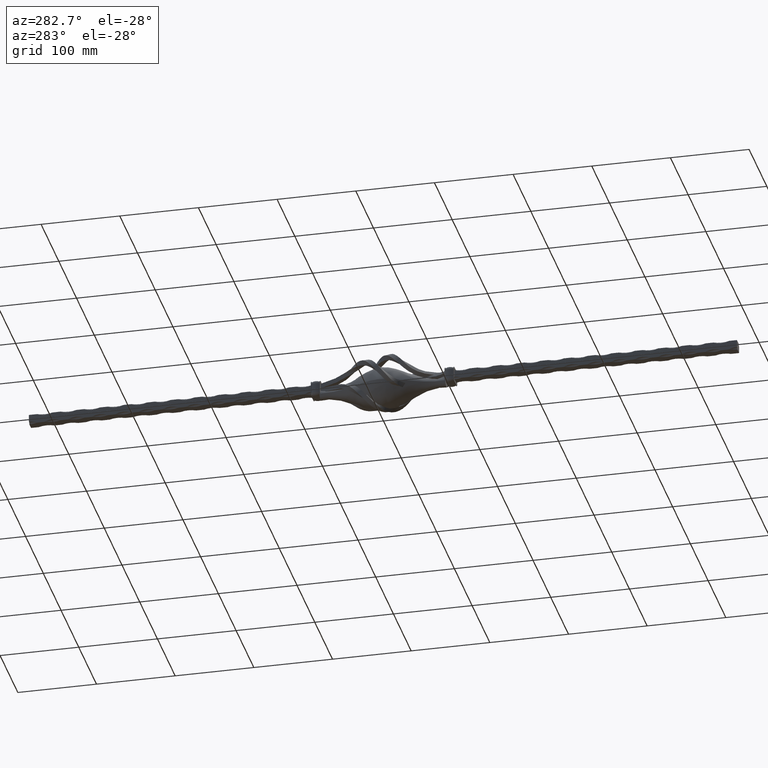
[diagram: clean part render]
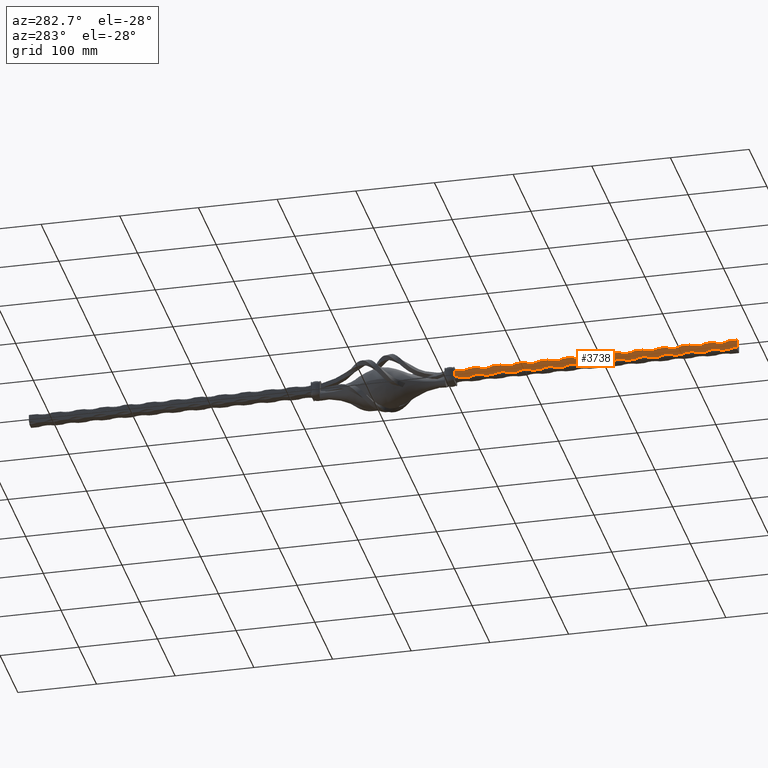
[diagram: same view with one face highlighted and labeled with its STEP entity id]
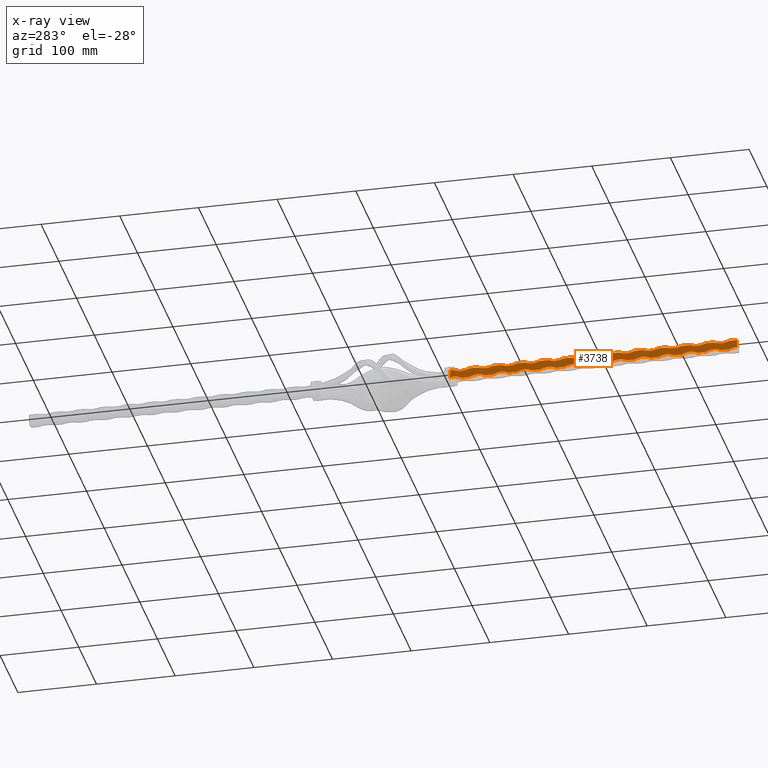
[diagram: x-ray of the same camera — body ghosted, the highlighted face saturated]
A machine part, auxiliary view. The second image highlights one B-rep face of the part: STEP entity #3738.
The next image is the same camera in x-ray: the body ghosted, the highlighted face saturated — about 0% of this face is hidden behind the body in this view.
In plain terms, the highlighted planar face has unit normal (1, 0, 0).
Its self-contained STEP definition (entity closure, byte-faithful):
#52 = DIRECTION ( 'NONE',  ( -1.000000000000000000, -0.000000000000000000, -0.000000000000000000 ) ) ;
#53 = DIRECTION ( 'NONE',  ( -0.000000000000000000, 1.000000000000000000, -0.000000000000000000 ) ) ;
#64 = LINE ( 'NONE', #15709, #23867 ) ;
#79 = EDGE_CURVE ( 'NONE', #5100, #22572, #15003, .T. ) ;
#131 = EDGE_CURVE ( 'NONE', #20643, #11840, #64, .T. ) ;
#170 = VERTEX_POINT ( 'NONE', #20358 ) ;
#232 = CARTESIAN_POINT ( 'NONE',  ( -2.999999999999938272, -420.0000000000000000, -15.74999999999985434 ) ) ;
#239 = LINE ( 'NONE', #26677, #28063 ) ;
#311 = EDGE_CURVE ( 'NONE', #18209, #2570, #7186, .T. ) ;
#505 = CIRCLE ( 'NONE', #22312, 21.25000000000003908 ) ;
#580 = VECTOR ( 'NONE', #13671, 1000.000000000000000 ) ;
#610 = EDGE_CURVE ( 'NONE', #4398, #5431, #17332, .T. ) ;
#672 = CARTESIAN_POINT ( 'NONE',  ( -2.999999999999938272, -450.0000000000000000, 5.500000000000182077 ) ) ;
#775 = ORIENTED_EDGE ( 'NONE', *, *, #9164, .F. ) ;
#789 = ORIENTED_EDGE ( 'NONE', *, *, #5354, .F. ) ;
#805 = VECTOR ( 'NONE', #12596, 1000.000000000000000 ) ;
#901 = VERTEX_POINT ( 'NONE', #20824 ) ;
#930 = AXIS2_PLACEMENT_3D ( 'NONE', #4090, #2196, #4197 ) ;
#996 = EDGE_CURVE ( 'NONE', #1182, #170, #21100, .T. ) ;
#1160 = ORIENTED_EDGE ( 'NONE', *, *, #4737, .T. ) ;
#1182 = VERTEX_POINT ( 'NONE', #25967 ) ;
#1318 = VERTEX_POINT ( 'NONE', #14841 ) ;
#1350 = VECTOR ( 'NONE', #14709, 1000.000000000000000 ) ;
#1379 = EDGE_LOOP ( 'NONE', ( #22438, #10796, #14425, #16097, #26589, #3776, #10308, #21255, #3208, #9122, #4710, #3313, #23083, #25761, #19189, #19450, #18376, #21944, #16288, #1948, #28134, #25971, #14775, #26452, #8121, #27143, #15409, #22727, #18349, #789, #25733, #12653, #17409, #6365, #1160, #12177, #23287, #10509, #15422, #14847, #10023, #1494, #24144, #9638, #12490, #4846, #3261, #15499, #7585, #7250, #16549, #775 ) ) ;
#1381 = EDGE_CURVE ( 'NONE', #6683, #12390, #6138, .T. ) ;
#1403 = CARTESIAN_POINT ( 'NONE',  ( -2.999999999999937383, -450.0000000000000000, 2.999999999999937828 ) ) ;
#1417 = LINE ( 'NONE', #22986, #7870 ) ;
#1483 = CARTESIAN_POINT ( 'NONE',  ( -2.999999999999933831, -260.0000000000000000, 15.00000000000006395 ) ) ;
#1494 = ORIENTED_EDGE ( 'NONE', *, *, #11883, .F. ) ;
#1617 = AXIS2_PLACEMENT_3D ( 'NONE', #24000, #52, #8700 ) ;
#1671 = CARTESIAN_POINT ( 'NONE',  ( -2.999999999999937383, -85.00000000000000000, 15.00000000000006395 ) ) ;
#1748 = VECTOR ( 'NONE', #11060, 1000.000000000000000 ) ;
#1794 = CARTESIAN_POINT ( 'NONE',  ( -2.999999999999935163, -250.0000000000000000, 3.000000000000181188 ) ) ;
#1927 = EDGE_CURVE ( 'NONE', #18596, #16962, #7133, .T. ) ;
#1948 = ORIENTED_EDGE ( 'NONE', *, *, #4959, .F. ) ;
#2001 = AXIS2_PLACEMENT_3D ( 'NONE', #10968, #21721, #8976 ) ;
#2094 = CARTESIAN_POINT ( 'NONE',  ( -2.999999999999943601, -270.0000000000000000, 15.00000000000006395 ) ) ;
#2196 = DIRECTION ( 'NONE',  ( -1.000000000000000000, -0.000000000000000000, -0.000000000000000000 ) ) ;
#2241 = VERTEX_POINT ( 'NONE', #23267 ) ;
#2262 = AXIS2_PLACEMENT_3D ( 'NONE', #11098, #22029, #17518 ) ;
#2309 = CIRCLE ( 'NONE', #21651, 21.25000000000003908 ) ;
#2388 = DIRECTION ( 'NONE',  ( 1.000000000000000000, 0.000000000000000000, 0.000000000000000000 ) ) ;
#2411 = VERTEX_POINT ( 'NONE', #17140 ) ;
#2434 = LINE ( 'NONE', #16024, #10943 ) ;
#2458 = EDGE_CURVE ( 'NONE', #19104, #10106, #16271, .T. ) ;
#2477 = LINE ( 'NONE', #8133, #805 ) ;
#2543 = EDGE_CURVE ( 'NONE', #2411, #27737, #20340, .T. ) ;
#2570 = VERTEX_POINT ( 'NONE', #18660 ) ;
#2626 = VECTOR ( 'NONE', #21307, 1000.000000000000000 ) ;
#2654 = EDGE_CURVE ( 'NONE', #3836, #20247, #10170, .T. ) ;
#2658 = CARTESIAN_POINT ( 'NONE',  ( -2.999999999999936939, -360.0000000000000000, -15.74999999999985434 ) ) ;
#2883 = CARTESIAN_POINT ( 'NONE',  ( -2.999999999999936939, -339.9999999999999432, 3.000000000000181188 ) ) ;
#2951 = EDGE_CURVE ( 'NONE', #4098, #3237, #16586, .T. ) ;
#2976 = LINE ( 'NONE', #22383, #19971 ) ;
#3160 = VERTEX_POINT ( 'NONE', #1794 ) ;
#3167 = VERTEX_POINT ( 'NONE', #12539 ) ;
#3208 = ORIENTED_EDGE ( 'NONE', *, *, #5577, .T. ) ;
#3237 = VERTEX_POINT ( 'NONE', #16614 ) ;
#3249 = DIRECTION ( 'NONE',  ( 0.000000000000000000, 0.000000000000000000, 1.000000000000000000 ) ) ;
#3261 = ORIENTED_EDGE ( 'NONE', *, *, #18784, .T. ) ;
#3313 = ORIENTED_EDGE ( 'NONE', *, *, #17038, .F. ) ;
#3370 = CARTESIAN_POINT ( 'NONE',  ( -2.999999999999936939, -370.0000000000000000, 3.000000000000181188 ) ) ;
#3455 = CARTESIAN_POINT ( 'NONE',  ( -2.999999999999937383, -450.0000000000000000, 2.999999999999937828 ) ) ;
#3657 = FACE_OUTER_BOUND ( 'NONE', #1379, .T. ) ;
#3738 = ADVANCED_FACE ( 'NONE', ( #3657 ), #18630, .F. ) ;
#3752 = DIRECTION ( 'NONE',  ( 0.000000000000000000, 0.000000000000000000, -1.000000000000000000 ) ) ;
#3776 = ORIENTED_EDGE ( 'NONE', *, *, #19618, .F. ) ;
#3792 = VECTOR ( 'NONE', #27700, 1000.000000000000000 ) ;
#3836 = VERTEX_POINT ( 'NONE', #7737 ) ;
#4017 = AXIS2_PLACEMENT_3D ( 'NONE', #26714, #24636, #26893 ) ;
#4024 = LINE ( 'NONE', #11625, #13230 ) ;
#4090 = CARTESIAN_POINT ( 'NONE',  ( -2.999999999999933831, -100.0000000000000284, 33.75000000000010658 ) ) ;
#4092 = LINE ( 'NONE', #24370, #27537 ) ;
#4098 = VERTEX_POINT ( 'NONE', #16978 ) ;
#4197 = DIRECTION ( 'NONE',  ( 0.000000000000000000, 0.000000000000000000, -1.000000000000000000 ) ) ;
#4398 = VERTEX_POINT ( 'NONE', #11418 ) ;
#4532 = DIRECTION ( 'NONE',  ( -0.000000000000000000, 1.000000000000000000, -0.000000000000000000 ) ) ;
#4709 = CARTESIAN_POINT ( 'NONE',  ( -2.999999999999933387, -230.0000000000000000, 15.00000000000006395 ) ) ;
#4710 = ORIENTED_EDGE ( 'NONE', *, *, #27334, .T. ) ;
#4737 = EDGE_CURVE ( 'NONE', #5100, #8586, #19562, .T. ) ;
#4762 = DIRECTION ( 'NONE',  ( -1.000000000000000000, -0.000000000000000000, -0.000000000000000000 ) ) ;
#4803 = CIRCLE ( 'NONE', #13347, 21.25000000000003908 ) ;
#4846 = ORIENTED_EDGE ( 'NONE', *, *, #2543, .F. ) ;
#4898 = DIRECTION ( 'NONE',  ( 0.000000000000000000, 0.000000000000000000, -1.000000000000000000 ) ) ;
#4942 = DIRECTION ( 'NONE',  ( 0.000000000000000000, -2.612289469706245741E-15, -1.000000000000000000 ) ) ;
#4959 = EDGE_CURVE ( 'NONE', #20494, #3167, #15158, .T. ) ;
#4981 = EDGE_CURVE ( 'NONE', #7570, #11680, #6356, .T. ) ;
#5002 = DIRECTION ( 'NONE',  ( 1.000000000000000000, 0.000000000000000000, 0.000000000000000000 ) ) ;
#5072 = AXIS2_PLACEMENT_3D ( 'NONE', #11415, #4762, #13509 ) ;
#5100 = VERTEX_POINT ( 'NONE', #25824 ) ;
#5160 = EDGE_CURVE ( 'NONE', #10264, #11167, #10762, .T. ) ;
#5197 = CARTESIAN_POINT ( 'NONE',  ( -2.999999999999937383, -450.0000000000000000, 2.999999999999937828 ) ) ;
#5272 = VERTEX_POINT ( 'NONE', #9944 ) ;
#5305 = AXIS2_PLACEMENT_3D ( 'NONE', #18437, #7637, #27190 ) ;
#5354 = EDGE_CURVE ( 'NONE', #20598, #20157, #21988, .T. ) ;
#5404 = CARTESIAN_POINT ( 'NONE',  ( -2.999999999999938272, -409.9999999999995453, 2.999999999999929834 ) ) ;
#5431 = VERTEX_POINT ( 'NONE', #6659 ) ;
#5556 = DIRECTION ( 'NONE',  ( 1.000000000000000000, 0.000000000000000000, 0.000000000000000000 ) ) ;
#5577 = EDGE_CURVE ( 'NONE', #18209, #8514, #239, .T. ) ;
#5898 = DIRECTION ( 'NONE',  ( -1.000000000000000000, -0.000000000000000000, -0.000000000000000000 ) ) ;
#6009 = DIRECTION ( 'NONE',  ( 0.000000000000000000, 0.000000000000000000, -1.000000000000000000 ) ) ;
#6101 = LINE ( 'NONE', #16997, #16261 ) ;
#6138 = CIRCLE ( 'NONE', #4017, 21.25000000000004263 ) ;
#6208 = CARTESIAN_POINT ( 'NONE',  ( -2.999999999999937383, -450.0000000000000000, 2.999999999999937828 ) ) ;
#6297 = CARTESIAN_POINT ( 'NONE',  ( -2.999999999999935163, -320.0000000000000000, 15.00000000000006395 ) ) ;
#6356 = CIRCLE ( 'NONE', #8443, 21.25000000000004263 ) ;
#6365 = ORIENTED_EDGE ( 'NONE', *, *, #79, .F. ) ;
#6449 = CARTESIAN_POINT ( 'NONE',  ( -2.999999999999937383, -450.0000000000000000, 2.999999999999937828 ) ) ;
#6558 = VERTEX_POINT ( 'NONE', #21768 ) ;
#6632 = EDGE_CURVE ( 'NONE', #901, #6558, #27005, .T. ) ;
#6659 = CARTESIAN_POINT ( 'NONE',  ( -2.999999999999933387, -130.0000000000000000, 3.000000000000181188 ) ) ;
#6683 = VERTEX_POINT ( 'NONE', #13131 ) ;
#6982 = DIRECTION ( 'NONE',  ( -0.000000000000000000, 1.000000000000000000, -0.000000000000000000 ) ) ;
#7133 = CIRCLE ( 'NONE', #20961, 21.25000000000004263 ) ;
#7186 = CIRCLE ( 'NONE', #27320, 21.25000000000004263 ) ;
#7220 = EDGE_CURVE ( 'NONE', #4398, #22572, #505, .T. ) ;
#7250 = ORIENTED_EDGE ( 'NONE', *, *, #17935, .F. ) ;
#7351 = CARTESIAN_POINT ( 'NONE',  ( -2.999999999999937383, -450.0000000000000000, 2.999999999999937828 ) ) ;
#7485 = DIRECTION ( 'NONE',  ( -0.000000000000000000, 1.000000000000000000, -0.000000000000000000 ) ) ;
#7513 = CARTESIAN_POINT ( 'NONE',  ( -2.999999999999938272, -430.0000000000000000, 3.000000000000181188 ) ) ;
#7570 = VERTEX_POINT ( 'NONE', #16546 ) ;
#7585 = ORIENTED_EDGE ( 'NONE', *, *, #16802, .T. ) ;
#7596 = VECTOR ( 'NONE', #7485, 1000.000000000000000 ) ;
#7637 = DIRECTION ( 'NONE',  ( 1.000000000000000000, 0.000000000000000000, 0.000000000000000000 ) ) ;
#7737 = CARTESIAN_POINT ( 'NONE',  ( -2.999999999999935163, -199.9999999999995168, 2.999999999999929834 ) ) ;
#7863 = VECTOR ( 'NONE', #23840, 1000.000000000000000 ) ;
#7870 = VECTOR ( 'NONE', #25242, 1000.000000000000000 ) ;
#7967 = DIRECTION ( 'NONE',  ( 1.000000000000000000, 0.000000000000000000, 0.000000000000000000 ) ) ;
#8121 = ORIENTED_EDGE ( 'NONE', *, *, #17255, .T. ) ;
#8133 = CARTESIAN_POINT ( 'NONE',  ( -2.999999999999937383, -85.00000000000000000, 15.00000000000006395 ) ) ;
#8191 = AXIS2_PLACEMENT_3D ( 'NONE', #8921, #13289, #13207 ) ;
#8443 = AXIS2_PLACEMENT_3D ( 'NONE', #26016, #15166, #10817 ) ;
#8514 = VERTEX_POINT ( 'NONE', #22968 ) ;
#8586 = VERTEX_POINT ( 'NONE', #14118 ) ;
#8700 = DIRECTION ( 'NONE',  ( 0.000000000000000000, 0.000000000000000000, -1.000000000000000000 ) ) ;
#8718 = CARTESIAN_POINT ( 'NONE',  ( -2.999999999999937383, -450.0000000000000000, 15.00000000000006395 ) ) ;
#8921 = CARTESIAN_POINT ( 'NONE',  ( -2.999999999999931610, -90.00000000000002842, -15.74999999999985434 ) ) ;
#8976 = DIRECTION ( 'NONE',  ( 0.000000000000000000, -2.612289469706245741E-15, -1.000000000000000000 ) ) ;
#9122 = ORIENTED_EDGE ( 'NONE', *, *, #24833, .F. ) ;
#9151 = CARTESIAN_POINT ( 'NONE',  ( -2.999999999999943601, -390.0000000000000000, 15.00000000000006395 ) ) ;
#9164 = EDGE_CURVE ( 'NONE', #2241, #10106, #4092, .T. ) ;
#9328 = DIRECTION ( 'NONE',  ( -0.000000000000000000, 1.000000000000000000, -0.000000000000000000 ) ) ;
#9434 = CARTESIAN_POINT ( 'NONE',  ( -2.999999999999931610, -100.0000000000000284, 3.000000000000181188 ) ) ;
#9449 = EDGE_CURVE ( 'NONE', #20494, #12390, #22430, .T. ) ;
#9533 = CARTESIAN_POINT ( 'NONE',  ( -2.999999999999933387, -180.0000000000000000, -15.74999999999985434 ) ) ;
#9595 = VECTOR ( 'NONE', #18271, 1000.000000000000000 ) ;
#9630 = CARTESIAN_POINT ( 'NONE',  ( -2.999999999999936939, -289.9999999999995453, 2.999999999999929834 ) ) ;
#9638 = ORIENTED_EDGE ( 'NONE', *, *, #6632, .F. ) ;
#9767 = DIRECTION ( 'NONE',  ( -0.000000000000000000, 1.000000000000000000, -0.000000000000000000 ) ) ;
#9781 = CARTESIAN_POINT ( 'NONE',  ( -2.999999999999935163, -220.0000000000000000, 3.000000000000181188 ) ) ;
#9792 = VERTEX_POINT ( 'NONE', #12526 ) ;
#9831 = DIRECTION ( 'NONE',  ( -1.000000000000000000, -0.000000000000000000, -0.000000000000000000 ) ) ;
#9944 = CARTESIAN_POINT ( 'NONE',  ( -2.999999999999937383, -85.00000000000000000, 4.903389552323058176 ) ) ;
#10023 = ORIENTED_EDGE ( 'NONE', *, *, #996, .T. ) ;
#10040 = VECTOR ( 'NONE', #19630, 1000.000000000000000 ) ;
#10097 = DIRECTION ( 'NONE',  ( -1.000000000000000000, -0.000000000000000000, -0.000000000000000000 ) ) ;
#10106 = VERTEX_POINT ( 'NONE', #7513 ) ;
#10170 = CIRCLE ( 'NONE', #24784, 21.25000000000003908 ) ;
#10235 = CARTESIAN_POINT ( 'NONE',  ( -2.999999999999933387, -149.9999999999999716, -15.74999999999985434 ) ) ;
#10247 = EDGE_CURVE ( 'NONE', #7570, #3167, #6101, .T. ) ;
#10264 = VERTEX_POINT ( 'NONE', #2094 ) ;
#10308 = ORIENTED_EDGE ( 'NONE', *, *, #12080, .T. ) ;
#10362 = CARTESIAN_POINT ( 'NONE',  ( -2.999999999999937383, -450.0000000000000000, 15.00000000000006395 ) ) ;
#10449 = EDGE_CURVE ( 'NONE', #20598, #5431, #20694, .T. ) ;
#10509 = ORIENTED_EDGE ( 'NONE', *, *, #18348, .F. ) ;
#10651 = AXIS2_PLACEMENT_3D ( 'NONE', #16369, #5556, #20756 ) ;
#10759 = AXIS2_PLACEMENT_3D ( 'NONE', #232, #11615, #16908 ) ;
#10762 = CIRCLE ( 'NONE', #26076, 21.25000000000004263 ) ;
#10796 = ORIENTED_EDGE ( 'NONE', *, *, #11725, .T. ) ;
#10817 = DIRECTION ( 'NONE',  ( 0.000000000000000000, 0.000000000000000000, -1.000000000000000000 ) ) ;
#10943 = VECTOR ( 'NONE', #9328, 1000.000000000000000 ) ;
#10945 = CARTESIAN_POINT ( 'NONE',  ( -2.999999999999938272, -379.9999999999995453, 2.999999999999929834 ) ) ;
#10968 = CARTESIAN_POINT ( 'NONE',  ( -2.999999999999936939, -329.9999999999999432, -15.74999999999985434 ) ) ;
#11045 = DIRECTION ( 'NONE',  ( -0.000000000000000000, 1.000000000000000000, -0.000000000000000000 ) ) ;
#11060 = DIRECTION ( 'NONE',  ( -0.000000000000000000, 1.000000000000000000, -0.000000000000000000 ) ) ;
#11098 = CARTESIAN_POINT ( 'NONE',  ( -2.999999999999934719, -130.0000000000000000, 33.75000000000010658 ) ) ;
#11167 = VERTEX_POINT ( 'NONE', #21660 ) ;
#11415 = CARTESIAN_POINT ( 'NONE',  ( -2.999999999999940048, -430.0000000000000000, 33.75000000000010658 ) ) ;
#11418 = CARTESIAN_POINT ( 'NONE',  ( -2.999999999999933387, -139.9999999999994884, 2.999999999999929834 ) ) ;
#11615 = DIRECTION ( 'NONE',  ( 1.000000000000000000, 0.000000000000000000, 0.000000000000000000 ) ) ;
#11625 = CARTESIAN_POINT ( 'NONE',  ( -2.999999999999937383, -450.0000000000000000, 15.00000000000006395 ) ) ;
#11629 = EDGE_CURVE ( 'NONE', #2241, #12737, #2309, .T. ) ;
#11680 = VERTEX_POINT ( 'NONE', #4709 ) ;
#11717 = DIRECTION ( 'NONE',  ( 1.000000000000000000, 0.000000000000000000, 0.000000000000000000 ) ) ;
#11725 = EDGE_CURVE ( 'NONE', #12737, #20643, #2976, .T. ) ;
#11819 = CARTESIAN_POINT ( 'NONE',  ( -2.999999999999937383, -440.0000000000000000, 15.00000000000006395 ) ) ;
#11840 = VERTEX_POINT ( 'NONE', #11819 ) ;
#11883 = EDGE_CURVE ( 'NONE', #25225, #170, #20976, .T. ) ;
#12021 = CARTESIAN_POINT ( 'NONE',  ( -2.999999999999937383, -450.0000000000000000, 15.00000000000006395 ) ) ;
#12080 = EDGE_CURVE ( 'NONE', #22591, #2570, #22349, .T. ) ;
#12081 = DIRECTION ( 'NONE',  ( 0.000000000000000000, 0.000000000000000000, -1.000000000000000000 ) ) ;
#12115 = DIRECTION ( 'NONE',  ( -0.000000000000000000, 1.000000000000000000, -0.000000000000000000 ) ) ;
#12177 = ORIENTED_EDGE ( 'NONE', *, *, #22152, .F. ) ;
#12202 = EDGE_CURVE ( 'NONE', #4098, #11840, #14187, .T. ) ;
#12222 = CIRCLE ( 'NONE', #1617, 21.25000000000004263 ) ;
#12227 = VECTOR ( 'NONE', #9767, 1000.000000000000000 ) ;
#12259 = CARTESIAN_POINT ( 'NONE',  ( -2.999999999999937383, -450.0000000000000000, 15.00000000000006395 ) ) ;
#12370 = AXIS2_PLACEMENT_3D ( 'NONE', #13587, #26498, #26588 ) ;
#12390 = VERTEX_POINT ( 'NONE', #26874 ) ;
#12490 = ORIENTED_EDGE ( 'NONE', *, *, #13352, .T. ) ;
#12526 = CARTESIAN_POINT ( 'NONE',  ( -2.999999999999943601, -90.00000000000001421, 15.00000000000006395 ) ) ;
#12539 = CARTESIAN_POINT ( 'NONE',  ( -2.999999999999932498, -200.0000000000000000, 15.00000000000006395 ) ) ;
#12596 = DIRECTION ( 'NONE',  ( 0.000000000000000000, 0.000000000000000000, 1.000000000000000000 ) ) ;
#12607 = DIRECTION ( 'NONE',  ( -1.000000000000000000, -0.000000000000000000, -0.000000000000000000 ) ) ;
#12653 = ORIENTED_EDGE ( 'NONE', *, *, #610, .F. ) ;
#12696 = EDGE_CURVE ( 'NONE', #26824, #26011, #25711, .T. ) ;
#12737 = VERTEX_POINT ( 'NONE', #672 ) ;
#13131 = CARTESIAN_POINT ( 'NONE',  ( -2.999999999999943601, -149.9999999999999716, 15.00000000000006395 ) ) ;
#13207 = DIRECTION ( 'NONE',  ( 0.000000000000000000, -1.959217102279684602E-15, -1.000000000000000000 ) ) ;
#13230 = VECTOR ( 'NONE', #6982, 1000.000000000000000 ) ;
#13254 = CIRCLE ( 'NONE', #12370, 21.25000000000003908 ) ;
#13289 = DIRECTION ( 'NONE',  ( 1.000000000000000000, 0.000000000000000000, 0.000000000000000000 ) ) ;
#13347 = AXIS2_PLACEMENT_3D ( 'NONE', #2658, #2388, #24433 ) ;
#13352 = EDGE_CURVE ( 'NONE', #901, #27737, #15474, .T. ) ;
#13465 = DIRECTION ( 'NONE',  ( -0.000000000000000000, 1.000000000000000000, -0.000000000000000000 ) ) ;
#13509 = DIRECTION ( 'NONE',  ( 0.000000000000000000, 0.000000000000000000, -1.000000000000000000 ) ) ;
#13557 = DIRECTION ( 'NONE',  ( 0.000000000000000000, -2.612289469706245741E-15, -1.000000000000000000 ) ) ;
#13587 = CARTESIAN_POINT ( 'NONE',  ( -2.999999999999935163, -240.0000000000000000, -15.74999999999985434 ) ) ;
#13671 = DIRECTION ( 'NONE',  ( -0.000000000000000000, 1.000000000000000000, -0.000000000000000000 ) ) ;
#13905 = EDGE_CURVE ( 'NONE', #9792, #1318, #18156, .T. ) ;
#13917 = DIRECTION ( 'NONE',  ( 0.000000000000000000, 0.000000000000000000, -1.000000000000000000 ) ) ;
#14055 = CARTESIAN_POINT ( 'NONE',  ( -2.999999999999943601, -300.0000000000000000, 15.00000000000006395 ) ) ;
#14118 = CARTESIAN_POINT ( 'NONE',  ( -2.999999999999933387, -190.0000000000000000, 3.000000000000181188 ) ) ;
#14187 = CIRCLE ( 'NONE', #5072, 21.25000000000004263 ) ;
#14271 = DIRECTION ( 'NONE',  ( 0.000000000000000000, 0.000000000000000000, -1.000000000000000000 ) ) ;
#14419 = AXIS2_PLACEMENT_3D ( 'NONE', #18975, #5898, #25457 ) ;
#14425 = ORIENTED_EDGE ( 'NONE', *, *, #131, .T. ) ;
#14709 = DIRECTION ( 'NONE',  ( -0.000000000000000000, 1.000000000000000000, -0.000000000000000000 ) ) ;
#14732 = VECTOR ( 'NONE', #27440, 1000.000000000000000 ) ;
#14775 = ORIENTED_EDGE ( 'NONE', *, *, #18843, .T. ) ;
#14779 = AXIS2_PLACEMENT_3D ( 'NONE', #24789, #16120, #4942 ) ;
#14838 = LINE ( 'NONE', #25208, #16188 ) ;
#14841 = CARTESIAN_POINT ( 'NONE',  ( -2.999999999999930722, -110.0000000000000426, 15.00000000000006395 ) ) ;
#14847 = ORIENTED_EDGE ( 'NONE', *, *, #18193, .F. ) ;
#15003 = LINE ( 'NONE', #7351, #15320 ) ;
#15103 = CARTESIAN_POINT ( 'NONE',  ( -2.999999999999943601, -240.0000000000000000, 15.00000000000006395 ) ) ;
#15141 = CARTESIAN_POINT ( 'NONE',  ( -2.999999999999943601, -329.9999999999999432, 15.00000000000006395 ) ) ;
#15158 = CIRCLE ( 'NONE', #14419, 21.25000000000004263 ) ;
#15166 = DIRECTION ( 'NONE',  ( -1.000000000000000000, -0.000000000000000000, -0.000000000000000000 ) ) ;
#15320 = VECTOR ( 'NONE', #13465, 1000.000000000000000 ) ;
#15403 = CARTESIAN_POINT ( 'NONE',  ( -2.999999999999937383, -450.0000000000000000, 2.999999999999937828 ) ) ;
#15409 = ORIENTED_EDGE ( 'NONE', *, *, #27831, .T. ) ;
#15422 = ORIENTED_EDGE ( 'NONE', *, *, #23968, .T. ) ;
#15474 = CIRCLE ( 'NONE', #2001, 21.25000000000003908 ) ;
#15499 = ORIENTED_EDGE ( 'NONE', *, *, #12696, .F. ) ;
#15520 = DIRECTION ( 'NONE',  ( -0.000000000000000000, 1.000000000000000000, -0.000000000000000000 ) ) ;
#15696 = CARTESIAN_POINT ( 'NONE',  ( -2.999999999999938272, -449.9999999999999432, -15.74999999999985434 ) ) ;
#15709 = CARTESIAN_POINT ( 'NONE',  ( -2.999999999999937383, -450.0000000000000000, 15.00000000000006395 ) ) ;
#15710 = CARTESIAN_POINT ( 'NONE',  ( -2.999999999999935163, -270.0000000000000000, -15.74999999999985434 ) ) ;
#15789 = DIRECTION ( 'NONE',  ( 0.000000000000000000, -2.612289469706245741E-15, -1.000000000000000000 ) ) ;
#16024 = CARTESIAN_POINT ( 'NONE',  ( -2.999999999999937383, -450.0000000000000000, 15.00000000000006395 ) ) ;
#16097 = ORIENTED_EDGE ( 'NONE', *, *, #12202, .F. ) ;
#16120 = DIRECTION ( 'NONE',  ( 1.000000000000000000, 0.000000000000000000, 0.000000000000000000 ) ) ;
#16188 = VECTOR ( 'NONE', #12115, 1000.000000000000000 ) ;
#16261 = VECTOR ( 'NONE', #25741, 1000.000000000000000 ) ;
#16271 = CIRCLE ( 'NONE', #10759, 21.25000000000003908 ) ;
#16276 = CARTESIAN_POINT ( 'NONE',  ( -2.999999999999943601, -360.0000000000000000, 15.00000000000006395 ) ) ;
#16288 = ORIENTED_EDGE ( 'NONE', *, *, #10247, .T. ) ;
#16369 = CARTESIAN_POINT ( 'NONE',  ( -2.999999999999938272, -390.0000000000000000, -15.74999999999985434 ) ) ;
#16546 = CARTESIAN_POINT ( 'NONE',  ( -2.999999999999943601, -210.0000000000000000, 15.00000000000006395 ) ) ;
#16549 = ORIENTED_EDGE ( 'NONE', *, *, #2458, .T. ) ;
#16586 = LINE ( 'NONE', #12021, #18283 ) ;
#16614 = CARTESIAN_POINT ( 'NONE',  ( -2.999999999999936939, -410.0000000000000568, 15.00000000000006395 ) ) ;
#16706 = CIRCLE ( 'NONE', #21951, 21.25000000000004263 ) ;
#16802 = EDGE_CURVE ( 'NONE', #26824, #22273, #18410, .T. ) ;
#16828 = CARTESIAN_POINT ( 'NONE',  ( -2.999999999999937383, -450.0000000000000000, 2.999999999999937828 ) ) ;
#16904 = VECTOR ( 'NONE', #11045, 1000.000000000000000 ) ;
#16908 = DIRECTION ( 'NONE',  ( 0.000000000000000000, -2.612289469706245741E-15, -1.000000000000000000 ) ) ;
#16962 = VERTEX_POINT ( 'NONE', #1483 ) ;
#16978 = CARTESIAN_POINT ( 'NONE',  ( -2.999999999999943601, -420.0000000000000000, 15.00000000000006395 ) ) ;
#16997 = CARTESIAN_POINT ( 'NONE',  ( -2.999999999999937383, -450.0000000000000000, 15.00000000000006395 ) ) ;
#17038 = EDGE_CURVE ( 'NONE', #20355, #26754, #16706, .T. ) ;
#17095 = LINE ( 'NONE', #18484, #7596 ) ;
#17140 = CARTESIAN_POINT ( 'NONE',  ( -2.999999999999936939, -349.9999999999995453, 2.999999999999929834 ) ) ;
#17255 = EDGE_CURVE ( 'NONE', #21177, #1318, #27928, .T. ) ;
#17332 = LINE ( 'NONE', #15403, #1748 ) ;
#17344 = DIRECTION ( 'NONE',  ( -0.000000000000000000, 1.000000000000000000, -0.000000000000000000 ) ) ;
#17409 = ORIENTED_EDGE ( 'NONE', *, *, #7220, .T. ) ;
#17518 = DIRECTION ( 'NONE',  ( 0.000000000000000000, 0.000000000000000000, -1.000000000000000000 ) ) ;
#17712 = LINE ( 'NONE', #3455, #3792 ) ;
#17733 = CIRCLE ( 'NONE', #2262, 21.25000000000004263 ) ;
#17876 = DIRECTION ( 'NONE',  ( 1.000000000000000000, 0.000000000000000000, 0.000000000000000000 ) ) ;
#17935 = EDGE_CURVE ( 'NONE', #19104, #22273, #27574, .T. ) ;
#18151 = VERTEX_POINT ( 'NONE', #24766 ) ;
#18156 = CIRCLE ( 'NONE', #930, 21.25000000000004263 ) ;
#18177 = AXIS2_PLACEMENT_3D ( 'NONE', #15710, #5002, #13557 ) ;
#18193 = EDGE_CURVE ( 'NONE', #1182, #3160, #23532, .T. ) ;
#18209 = VERTEX_POINT ( 'NONE', #16276 ) ;
#18271 = DIRECTION ( 'NONE',  ( -0.000000000000000000, 1.000000000000000000, -0.000000000000000000 ) ) ;
#18283 = VECTOR ( 'NONE', #15520, 1000.000000000000000 ) ;
#18348 = EDGE_CURVE ( 'NONE', #18151, #20247, #17712, .T. ) ;
#18349 = ORIENTED_EDGE ( 'NONE', *, *, #27453, .T. ) ;
#18376 = ORIENTED_EDGE ( 'NONE', *, *, #20409, .T. ) ;
#18410 = CIRCLE ( 'NONE', #10651, 21.25000000000003908 ) ;
#18437 = CARTESIAN_POINT ( 'NONE',  ( -2.999999999999937383, -450.0000000000000000, 15.00000000000006395 ) ) ;
#18484 = CARTESIAN_POINT ( 'NONE',  ( -2.999999999999937383, -450.0000000000000000, 15.00000000000006395 ) ) ;
#18587 = CIRCLE ( 'NONE', #8191, 21.25000000000003908 ) ;
#18596 = VERTEX_POINT ( 'NONE', #15103 ) ;
#18630 = PLANE ( 'NONE',  #5305 ) ;
#18660 = CARTESIAN_POINT ( 'NONE',  ( -2.999999999999936051, -380.0000000000000000, 15.00000000000006395 ) ) ;
#18784 = EDGE_CURVE ( 'NONE', #2411, #26011, #4803, .T. ) ;
#18843 = EDGE_CURVE ( 'NONE', #6683, #26960, #2434, .T. ) ;
#18870 = AXIS2_PLACEMENT_3D ( 'NONE', #27522, #23078, #27426 ) ;
#18975 = CARTESIAN_POINT ( 'NONE',  ( -2.999999999999935607, -190.0000000000000000, 33.75000000000010658 ) ) ;
#18992 = EDGE_CURVE ( 'NONE', #25225, #6558, #27223, .T. ) ;
#18995 = CARTESIAN_POINT ( 'NONE',  ( -2.999999999999937828, -310.0000000000000000, 33.75000000000010658 ) ) ;
#19104 = VERTEX_POINT ( 'NONE', #5404 ) ;
#19189 = ORIENTED_EDGE ( 'NONE', *, *, #25105, .T. ) ;
#19223 = DIRECTION ( 'NONE',  ( 0.000000000000000000, 0.000000000000000000, -1.000000000000000000 ) ) ;
#19278 = VECTOR ( 'NONE', #17344, 1000.000000000000000 ) ;
#19450 = ORIENTED_EDGE ( 'NONE', *, *, #1927, .F. ) ;
#19562 = CIRCLE ( 'NONE', #19679, 21.25000000000003908 ) ;
#19618 = EDGE_CURVE ( 'NONE', #22591, #3237, #24295, .T. ) ;
#19630 = DIRECTION ( 'NONE',  ( -0.000000000000000000, 1.000000000000000000, -0.000000000000000000 ) ) ;
#19679 = AXIS2_PLACEMENT_3D ( 'NONE', #9533, #11717, #14271 ) ;
#19949 = CARTESIAN_POINT ( 'NONE',  ( -2.999999999999933387, -159.9999999999999716, 3.000000000000181188 ) ) ;
#19960 = LINE ( 'NONE', #23751, #19278 ) ;
#19971 = VECTOR ( 'NONE', #3249, 1000.000000000000000 ) ;
#20157 = VERTEX_POINT ( 'NONE', #9434 ) ;
#20247 = VERTEX_POINT ( 'NONE', #9781 ) ;
#20340 = LINE ( 'NONE', #1403, #12227 ) ;
#20355 = VERTEX_POINT ( 'NONE', #14055 ) ;
#20358 = CARTESIAN_POINT ( 'NONE',  ( -2.999999999999935163, -280.0000000000000000, 3.000000000000181188 ) ) ;
#20409 = EDGE_CURVE ( 'NONE', #18596, #11680, #17095, .T. ) ;
#20494 = VERTEX_POINT ( 'NONE', #27244 ) ;
#20551 = EDGE_CURVE ( 'NONE', #20355, #11167, #24927, .T. ) ;
#20598 = VERTEX_POINT ( 'NONE', #25719 ) ;
#20643 = VERTEX_POINT ( 'NONE', #21270 ) ;
#20694 = CIRCLE ( 'NONE', #18870, 21.25000000000003908 ) ;
#20756 = DIRECTION ( 'NONE',  ( 0.000000000000000000, -2.612289469706245741E-15, -1.000000000000000000 ) ) ;
#20806 = EDGE_CURVE ( 'NONE', #21177, #26960, #17733, .T. ) ;
#20824 = CARTESIAN_POINT ( 'NONE',  ( -2.999999999999936939, -319.9999999999994884, 2.999999999999929834 ) ) ;
#20953 = CARTESIAN_POINT ( 'NONE',  ( -2.999999999999943601, -119.9999999999999858, 15.00000000000006395 ) ) ;
#20961 = AXIS2_PLACEMENT_3D ( 'NONE', #21498, #21216, #23691 ) ;
#20976 = LINE ( 'NONE', #16828, #2626 ) ;
#21073 = EDGE_CURVE ( 'NONE', #5272, #21127, #2477, .T. ) ;
#21074 = CARTESIAN_POINT ( 'NONE',  ( -2.999999999999938272, -400.0000000000000000, 3.000000000000181188 ) ) ;
#21100 = CIRCLE ( 'NONE', #18177, 21.25000000000003908 ) ;
#21127 = VERTEX_POINT ( 'NONE', #1671 ) ;
#21151 = CARTESIAN_POINT ( 'NONE',  ( -2.999999999999939604, -400.0000000000000000, 33.75000000000010658 ) ) ;
#21177 = VERTEX_POINT ( 'NONE', #20953 ) ;
#21216 = DIRECTION ( 'NONE',  ( -1.000000000000000000, -0.000000000000000000, -0.000000000000000000 ) ) ;
#21255 = ORIENTED_EDGE ( 'NONE', *, *, #311, .F. ) ;
#21270 = CARTESIAN_POINT ( 'NONE',  ( -2.999999999999937383, -450.0000000000000000, 15.00000000000006395 ) ) ;
#21307 = DIRECTION ( 'NONE',  ( -0.000000000000000000, 1.000000000000000000, -0.000000000000000000 ) ) ;
#21498 = CARTESIAN_POINT ( 'NONE',  ( -2.999999999999936939, -250.0000000000000000, 33.75000000000010658 ) ) ;
#21651 = AXIS2_PLACEMENT_3D ( 'NONE', #15696, #26359, #15789 ) ;
#21660 = CARTESIAN_POINT ( 'NONE',  ( -2.999999999999934275, -290.0000000000000568, 15.00000000000006395 ) ) ;
#21721 = DIRECTION ( 'NONE',  ( 1.000000000000000000, 0.000000000000000000, 0.000000000000000000 ) ) ;
#21768 = CARTESIAN_POINT ( 'NONE',  ( -2.999999999999936939, -310.0000000000000000, 3.000000000000181188 ) ) ;
#21944 = ORIENTED_EDGE ( 'NONE', *, *, #4981, .F. ) ;
#21951 = AXIS2_PLACEMENT_3D ( 'NONE', #18995, #10097, #6009 ) ;
#21988 = LINE ( 'NONE', #6208, #25694 ) ;
#22029 = DIRECTION ( 'NONE',  ( -1.000000000000000000, -0.000000000000000000, -0.000000000000000000 ) ) ;
#22152 = EDGE_CURVE ( 'NONE', #3836, #8586, #1417, .T. ) ;
#22163 = VECTOR ( 'NONE', #4532, 1000.000000000000000 ) ;
#22273 = VERTEX_POINT ( 'NONE', #21074 ) ;
#22312 = AXIS2_PLACEMENT_3D ( 'NONE', #10235, #7967, #3752 ) ;
#22341 = CARTESIAN_POINT ( 'NONE',  ( -2.999999999999931610, -140.0000000000000000, 15.00000000000006395 ) ) ;
#22349 = LINE ( 'NONE', #23976, #16904 ) ;
#22383 = CARTESIAN_POINT ( 'NONE',  ( -2.999999999999937383, -450.0000000000000000, 15.00000000000006395 ) ) ;
#22430 = LINE ( 'NONE', #10362, #1350 ) ;
#22438 = ORIENTED_EDGE ( 'NONE', *, *, #11629, .T. ) ;
#22572 = VERTEX_POINT ( 'NONE', #19949 ) ;
#22591 = VERTEX_POINT ( 'NONE', #9151 ) ;
#22727 = ORIENTED_EDGE ( 'NONE', *, *, #21073, .F. ) ;
#22968 = CARTESIAN_POINT ( 'NONE',  ( -2.999999999999935607, -350.0000000000000000, 15.00000000000006395 ) ) ;
#22986 = CARTESIAN_POINT ( 'NONE',  ( -2.999999999999937383, -450.0000000000000000, 2.999999999999937828 ) ) ;
#23078 = DIRECTION ( 'NONE',  ( 1.000000000000000000, 0.000000000000000000, 0.000000000000000000 ) ) ;
#23083 = ORIENTED_EDGE ( 'NONE', *, *, #20551, .T. ) ;
#23267 = CARTESIAN_POINT ( 'NONE',  ( -2.999999999999938272, -439.9999999999994884, 2.999999999999929834 ) ) ;
#23287 = ORIENTED_EDGE ( 'NONE', *, *, #2654, .T. ) ;
#23314 = VERTEX_POINT ( 'NONE', #15141 ) ;
#23532 = LINE ( 'NONE', #5197, #9595 ) ;
#23691 = DIRECTION ( 'NONE',  ( 0.000000000000000000, 0.000000000000000000, -1.000000000000000000 ) ) ;
#23751 = CARTESIAN_POINT ( 'NONE',  ( -2.999999999999937383, -450.0000000000000000, 15.00000000000006395 ) ) ;
#23840 = DIRECTION ( 'NONE',  ( -0.000000000000000000, 1.000000000000000000, -0.000000000000000000 ) ) ;
#23867 = VECTOR ( 'NONE', #24570, 1000.000000000000000 ) ;
#23968 = EDGE_CURVE ( 'NONE', #18151, #3160, #13254, .T. ) ;
#23976 = CARTESIAN_POINT ( 'NONE',  ( -2.999999999999937383, -450.0000000000000000, 15.00000000000006395 ) ) ;
#24000 = CARTESIAN_POINT ( 'NONE',  ( -2.999999999999938272, -339.9999999999999432, 33.75000000000010658 ) ) ;
#24144 = ORIENTED_EDGE ( 'NONE', *, *, #18992, .T. ) ;
#24295 = CIRCLE ( 'NONE', #24820, 21.25000000000004263 ) ;
#24370 = CARTESIAN_POINT ( 'NONE',  ( -2.999999999999937383, -450.0000000000000000, 2.999999999999937828 ) ) ;
#24386 = CARTESIAN_POINT ( 'NONE',  ( -2.999999999999935163, -210.0000000000000000, -15.74999999999985434 ) ) ;
#24433 = DIRECTION ( 'NONE',  ( 0.000000000000000000, -2.612289469706245741E-15, -1.000000000000000000 ) ) ;
#24570 = DIRECTION ( 'NONE',  ( -0.000000000000000000, 1.000000000000000000, -0.000000000000000000 ) ) ;
#24636 = DIRECTION ( 'NONE',  ( -1.000000000000000000, -0.000000000000000000, -0.000000000000000000 ) ) ;
#24766 = CARTESIAN_POINT ( 'NONE',  ( -2.999999999999935163, -229.9999999999995168, 2.999999999999929834 ) ) ;
#24784 = AXIS2_PLACEMENT_3D ( 'NONE', #24386, #17876, #4898 ) ;
#24789 = CARTESIAN_POINT ( 'NONE',  ( -2.999999999999936939, -300.0000000000000000, -15.74999999999985434 ) ) ;
#24820 = AXIS2_PLACEMENT_3D ( 'NONE', #21151, #12607, #19223 ) ;
#24833 = EDGE_CURVE ( 'NONE', #23314, #8514, #12222, .T. ) ;
#24887 = DIRECTION ( 'NONE',  ( -1.000000000000000000, -0.000000000000000000, -0.000000000000000000 ) ) ;
#24927 = LINE ( 'NONE', #12259, #14732 ) ;
#25105 = EDGE_CURVE ( 'NONE', #10264, #16962, #4024, .T. ) ;
#25208 = CARTESIAN_POINT ( 'NONE',  ( -2.999999999999937383, -450.0000000000000000, 15.00000000000006395 ) ) ;
#25225 = VERTEX_POINT ( 'NONE', #9630 ) ;
#25242 = DIRECTION ( 'NONE',  ( -0.000000000000000000, 1.000000000000000000, -0.000000000000000000 ) ) ;
#25457 = DIRECTION ( 'NONE',  ( 0.000000000000000000, 0.000000000000000000, -1.000000000000000000 ) ) ;
#25671 = DIRECTION ( 'NONE',  ( -0.000000000000000000, 1.000000000000000000, -0.000000000000000000 ) ) ;
#25694 = VECTOR ( 'NONE', #25671, 1000.000000000000000 ) ;
#25711 = LINE ( 'NONE', #26491, #580 ) ;
#25719 = CARTESIAN_POINT ( 'NONE',  ( -2.999999999999933387, -109.9999999999995168, 2.999999999999929834 ) ) ;
#25733 = ORIENTED_EDGE ( 'NONE', *, *, #10449, .T. ) ;
#25741 = DIRECTION ( 'NONE',  ( -0.000000000000000000, 1.000000000000000000, -0.000000000000000000 ) ) ;
#25761 = ORIENTED_EDGE ( 'NONE', *, *, #5160, .F. ) ;
#25824 = CARTESIAN_POINT ( 'NONE',  ( -2.999999999999933387, -169.9999999999995168, 2.999999999999929834 ) ) ;
#25967 = CARTESIAN_POINT ( 'NONE',  ( -2.999999999999935163, -259.9999999999995453, 2.999999999999929834 ) ) ;
#25971 = ORIENTED_EDGE ( 'NONE', *, *, #1381, .F. ) ;
#26011 = VERTEX_POINT ( 'NONE', #3370 ) ;
#26016 = CARTESIAN_POINT ( 'NONE',  ( -2.999999999999936495, -220.0000000000000000, 33.75000000000010658 ) ) ;
#26031 = CARTESIAN_POINT ( 'NONE',  ( -2.999999999999937383, -450.0000000000000000, 2.999999999999937828 ) ) ;
#26076 = AXIS2_PLACEMENT_3D ( 'NONE', #27075, #24887, #12081 ) ;
#26359 = DIRECTION ( 'NONE',  ( 1.000000000000000000, 0.000000000000000000, 0.000000000000000000 ) ) ;
#26452 = ORIENTED_EDGE ( 'NONE', *, *, #20806, .F. ) ;
#26491 = CARTESIAN_POINT ( 'NONE',  ( -2.999999999999937383, -450.0000000000000000, 2.999999999999937828 ) ) ;
#26498 = DIRECTION ( 'NONE',  ( 1.000000000000000000, 0.000000000000000000, 0.000000000000000000 ) ) ;
#26588 = DIRECTION ( 'NONE',  ( 0.000000000000000000, 0.000000000000000000, -1.000000000000000000 ) ) ;
#26589 = ORIENTED_EDGE ( 'NONE', *, *, #2951, .T. ) ;
#26677 = CARTESIAN_POINT ( 'NONE',  ( -2.999999999999937383, -450.0000000000000000, 15.00000000000006395 ) ) ;
#26714 = CARTESIAN_POINT ( 'NONE',  ( -2.999999999999935163, -159.9999999999999716, 33.75000000000010658 ) ) ;
#26754 = VERTEX_POINT ( 'NONE', #6297 ) ;
#26824 = VERTEX_POINT ( 'NONE', #10945 ) ;
#26874 = CARTESIAN_POINT ( 'NONE',  ( -2.999999999999932054, -169.9999999999999716, 15.00000000000006395 ) ) ;
#26893 = DIRECTION ( 'NONE',  ( 0.000000000000000000, 0.000000000000000000, -1.000000000000000000 ) ) ;
#26922 = CARTESIAN_POINT ( 'NONE',  ( -2.999999999999938716, -370.0000000000000000, 33.75000000000010658 ) ) ;
#26960 = VERTEX_POINT ( 'NONE', #22341 ) ;
#27005 = LINE ( 'NONE', #26031, #10040 ) ;
#27075 = CARTESIAN_POINT ( 'NONE',  ( -2.999999999999937383, -280.0000000000000000, 33.75000000000010658 ) ) ;
#27143 = ORIENTED_EDGE ( 'NONE', *, *, #13905, .F. ) ;
#27190 = DIRECTION ( 'NONE',  ( 0.000000000000000000, 0.000000000000000000, -1.000000000000000000 ) ) ;
#27223 = CIRCLE ( 'NONE', #14779, 21.25000000000003908 ) ;
#27242 = DIRECTION ( 'NONE',  ( -0.000000000000000000, 1.000000000000000000, -0.000000000000000000 ) ) ;
#27244 = CARTESIAN_POINT ( 'NONE',  ( -2.999999999999943601, -180.0000000000000000, 15.00000000000006395 ) ) ;
#27320 = AXIS2_PLACEMENT_3D ( 'NONE', #26922, #9831, #13917 ) ;
#27334 = EDGE_CURVE ( 'NONE', #23314, #26754, #19960, .T. ) ;
#27426 = DIRECTION ( 'NONE',  ( 0.000000000000000000, 0.000000000000000000, -1.000000000000000000 ) ) ;
#27440 = DIRECTION ( 'NONE',  ( -0.000000000000000000, 1.000000000000000000, -0.000000000000000000 ) ) ;
#27453 = EDGE_CURVE ( 'NONE', #5272, #20157, #18587, .T. ) ;
#27522 = CARTESIAN_POINT ( 'NONE',  ( -2.999999999999933387, -120.0000000000000000, -15.74999999999985434 ) ) ;
#27537 = VECTOR ( 'NONE', #53, 1000.000000000000000 ) ;
#27574 = LINE ( 'NONE', #6449, #7863 ) ;
#27700 = DIRECTION ( 'NONE',  ( -0.000000000000000000, 1.000000000000000000, -0.000000000000000000 ) ) ;
#27737 = VERTEX_POINT ( 'NONE', #2883 ) ;
#27831 = EDGE_CURVE ( 'NONE', #9792, #21127, #14838, .T. ) ;
#27928 = LINE ( 'NONE', #8718, #22163 ) ;
#28063 = VECTOR ( 'NONE', #27242, 1000.000000000000000 ) ;
#28134 = ORIENTED_EDGE ( 'NONE', *, *, #9449, .T. ) ;